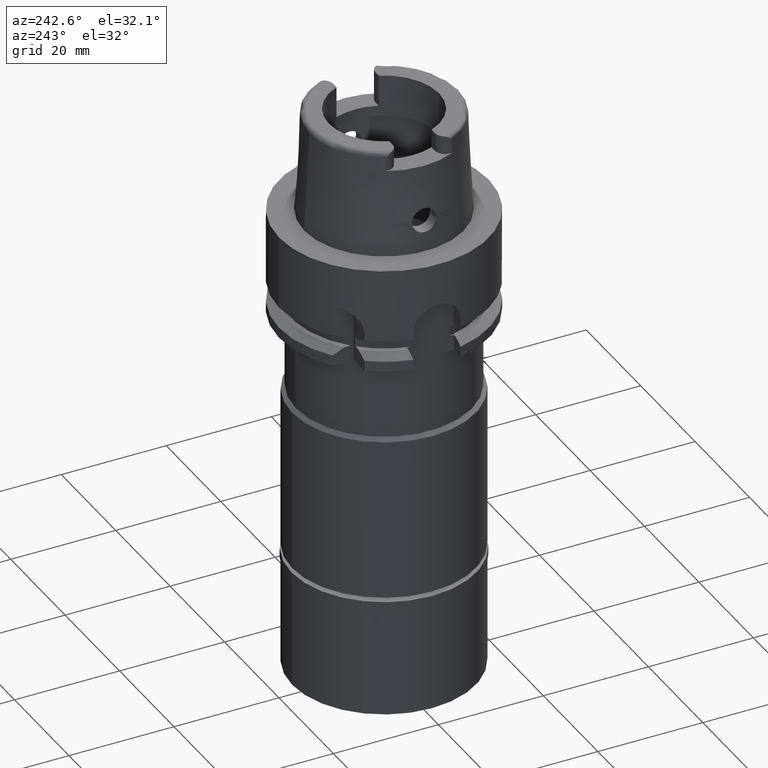
[diagram: clean part render]
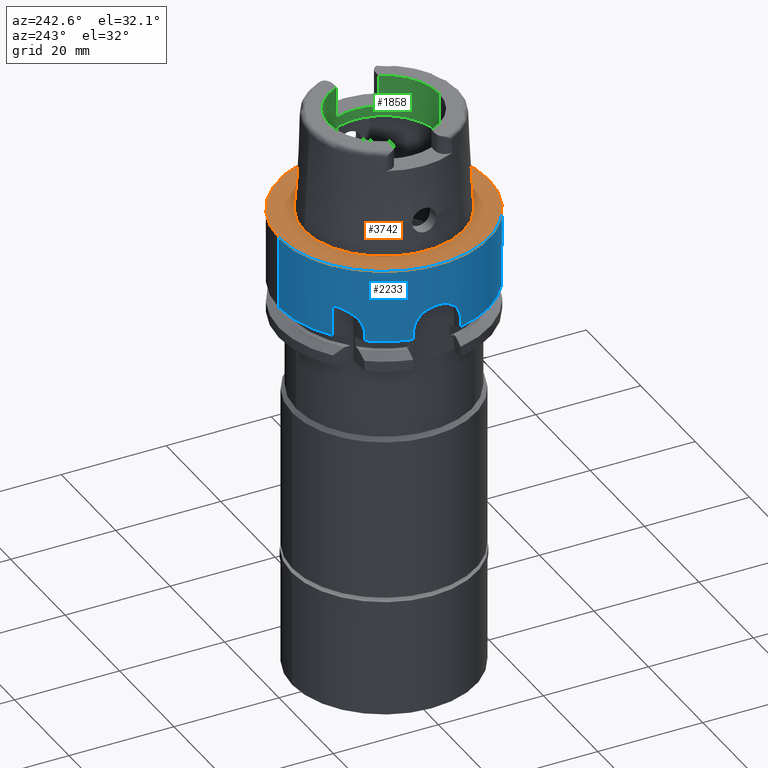
[diagram: same view with three faces highlighted in distinct colors, each labeled with its STEP entity id]
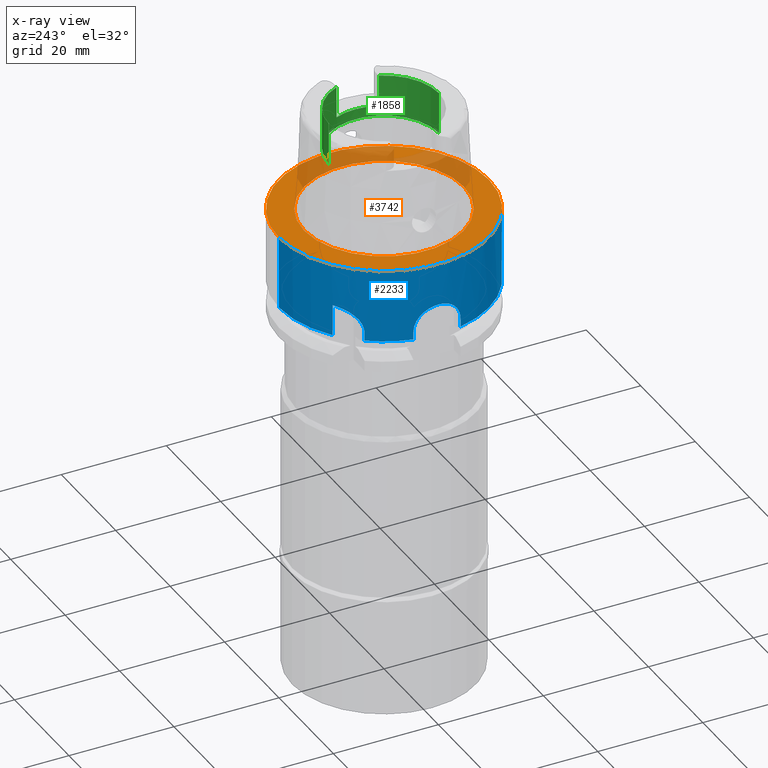
[diagram: x-ray of the same camera — body ghosted, the three highlighted faces saturated]
A machine part, auxiliary view with three faces highlighted in distinct colors.
The next image is the same camera in x-ray (body ghosted, the three faces saturated) — at least one of them is partly hidden behind the body in this view.
Their STEP definitions:

[orange] entity #3742 — the highlighted planar face has unit normal (0, 0, -1).
#4 = DIRECTION ( 'NONE',  ( 0.0000000000000000000, 0.0000000000000000000, 1.000000000000000000 ) ) ;
#108 = CARTESIAN_POINT ( 'NONE',  ( 0.0000000000000000000, 1.342457523729000028E-14, 0.0000000000000000000 ) ) ;
#170 = AXIS2_PLACEMENT_3D ( 'NONE', #108, #2147, #3004 ) ;
#224 = DIRECTION ( 'NONE',  ( 0.0000000000000000000, -1.000000000000000000, 0.0000000000000000000 ) ) ;
#363 = CARTESIAN_POINT ( 'NONE',  ( 0.0000000000000000000, 15.20000663301000010, 0.0000000000000000000 ) ) ;
#373 = EDGE_LOOP ( 'NONE', ( #3027, #1988 ) ) ;
#541 = VERTEX_POINT ( 'NONE', #644 ) ;
#644 = CARTESIAN_POINT ( 'NONE',  ( 0.0000000000000000000, -15.20000663301000010, 1.136868377215999875E-13 ) ) ;
#1156 = DIRECTION ( 'NONE',  ( 0.0000000000000000000, 0.0000000000000000000, -1.000000000000000000 ) ) ;
#1307 = AXIS2_PLACEMENT_3D ( 'NONE', #5102, #4, #1656 ) ;
#1482 = CIRCLE ( 'NONE', #1307, 15.20000663301000010 ) ;
#1615 = EDGE_CURVE ( 'NONE', #2781, #2472, #5119, .T. ) ;
#1656 = DIRECTION ( 'NONE',  ( 0.0000000000000000000, -1.000000000000000000, 0.0000000000000000000 ) ) ;
#1708 = CARTESIAN_POINT ( 'NONE',  ( 0.0000000000000000000, -20.00000000000000000, 3.197442310919999608E-14 ) ) ;
#1726 = CARTESIAN_POINT ( 'NONE',  ( 0.0000000000000000000, 20.00000000000000000, 2.131628207279999844E-14 ) ) ;
#1988 = ORIENTED_EDGE ( 'NONE', *, *, #2704, .F. ) ;
#2147 = DIRECTION ( 'NONE',  ( 0.0000000000000000000, 0.0000000000000000000, 1.000000000000000000 ) ) ;
#2191 = DIRECTION ( 'NONE',  ( 0.0000000000000000000, 1.000000000000000000, 0.0000000000000000000 ) ) ;
#2212 = FACE_OUTER_BOUND ( 'NONE', #2504, .T. ) ;
#2440 = AXIS2_PLACEMENT_3D ( 'NONE', #2638, #3885, #4274 ) ;
#2472 = VERTEX_POINT ( 'NONE', #1726 ) ;
#2504 = EDGE_LOOP ( 'NONE', ( #3549, #4907 ) ) ;
#2638 = CARTESIAN_POINT ( 'NONE',  ( 0.0000000000000000000, 1.224646799146999965E-14, 0.0000000000000000000 ) ) ;
#2704 = EDGE_CURVE ( 'NONE', #541, #2989, #1482, .T. ) ;
#2781 = VERTEX_POINT ( 'NONE', #1708 ) ;
#2985 = DIRECTION ( 'NONE',  ( 0.0000000000000000000, 0.0000000000000000000, -1.000000000000000000 ) ) ;
#2989 = VERTEX_POINT ( 'NONE', #363 ) ;
#3004 = DIRECTION ( 'NONE',  ( 0.0000000000000000000, 1.000000000000000000, 0.0000000000000000000 ) ) ;
#3018 = CARTESIAN_POINT ( 'NONE',  ( 0.0000000000000000000, 1.532829166152999980E-14, 3.197442310919999608E-14 ) ) ;
#3027 = ORIENTED_EDGE ( 'NONE', *, *, #4021, .F. ) ;
#3238 = EDGE_CURVE ( 'NONE', #2472, #2781, #4204, .T. ) ;
#3549 = ORIENTED_EDGE ( 'NONE', *, *, #3238, .F. ) ;
#3742 = ADVANCED_FACE ( 'NONE', ( #2212, #4748 ), #5158, .F. ) ;
#3885 = DIRECTION ( 'NONE',  ( 0.0000000000000000000, 0.0000000000000000000, -1.000000000000000000 ) ) ;
#3946 = CIRCLE ( 'NONE', #170, 15.20000663301000010 ) ;
#4021 = EDGE_CURVE ( 'NONE', #2989, #541, #3946, .T. ) ;
#4204 = CIRCLE ( 'NONE', #5186, 20.00000000000000000 ) ;
#4274 = DIRECTION ( 'NONE',  ( 0.0000000000000000000, -1.000000000000000000, 0.0000000000000000000 ) ) ;
#4469 = CARTESIAN_POINT ( 'NONE',  ( 0.0000000000000000000, 1.532829166152999980E-14, 3.197442310919999608E-14 ) ) ;
#4748 = FACE_BOUND ( 'NONE', #373, .T. ) ;
#4772 = AXIS2_PLACEMENT_3D ( 'NONE', #4469, #1156, #224 ) ;
#4907 = ORIENTED_EDGE ( 'NONE', *, *, #1615, .F. ) ;
#5102 = CARTESIAN_POINT ( 'NONE',  ( 0.0000000000000000000, 1.342457523729000028E-14, 0.0000000000000000000 ) ) ;
#5119 = CIRCLE ( 'NONE', #4772, 20.00000000000000000 ) ;
#5158 = PLANE ( 'NONE',  #2440 ) ;
#5186 = AXIS2_PLACEMENT_3D ( 'NONE', #3018, #2985, #2191 ) ;

[blue] entity #2233 — the highlighted cylindrical surface (partial cylindrical patch) has radius 20 mm, axis along (0, 0, -1).
#7 = VERTEX_POINT ( 'NONE', #3564 ) ;
#34 = CARTESIAN_POINT ( 'NONE',  ( -19.90101170705940348, 2.006481557453736908, -8.460996326225524555 ) ) ;
#53 = CIRCLE ( 'NONE', #2513, 20.00000000000000355 ) ;
#93 = CARTESIAN_POINT ( 'NONE',  ( -19.73202366874025060, -3.264763649351989372, -9.398687094199516423 ) ) ;
#118 = CARTESIAN_POINT ( 'NONE',  ( -19.87758030036442847, -2.223691308949410583, -8.577191542908050081 ) ) ;
#121 = CARTESIAN_POINT ( 'NONE',  ( -19.48717526991000071, -4.499999999998999911, -13.97927405783999966 ) ) ;
#142 = CARTESIAN_POINT ( 'NONE',  ( -19.51446967613451733, -4.386353221261614088, -11.33018856746538461 ) ) ;
#146 = LINE ( 'NONE', #121, #3962 ) ;
#198 = ORIENTED_EDGE ( 'NONE', *, *, #3244, .T. ) ;
#224 = DIRECTION ( 'NONE',  ( 0.0000000000000000000, -1.000000000000000000, 0.0000000000000000000 ) ) ;
#290 = CYLINDRICAL_SURFACE ( 'NONE', #634, 20.00000000000000000 ) ;
#365 = VECTOR ( 'NONE', #3818, 1000.000000000000000 ) ;
#479 = ORIENTED_EDGE ( 'NONE', *, *, #5190, .T. ) ;
#504 = CARTESIAN_POINT ( 'NONE',  ( -19.95105224385558884, -1.424502332197427279, -8.220975434818949878 ) ) ;
#532 = CARTESIAN_POINT ( 'NONE',  ( -19.58734834662835311, -4.043444086227347967, -10.50235415004552486 ) ) ;
#546 = VERTEX_POINT ( 'NONE', #2239 ) ;
#559 = CARTESIAN_POINT ( 'NONE',  ( -19.90503943809363108, -1.965476405207630783, -8.441329651984350591 ) ) ;
#634 = AXIS2_PLACEMENT_3D ( 'NONE', #5230, #3951, #2352 ) ;
#651 = EDGE_CURVE ( 'NONE', #546, #3570, #146, .T. ) ;
#850 = DIRECTION ( 'NONE',  ( 0.0000000000000000000, 0.0000000000000000000, 1.000000000000000000 ) ) ;
#879 = DIRECTION ( 'NONE',  ( 0.0000000000000000000, 1.000000000000000000, 0.0000000000000000000 ) ) ;
#946 = CARTESIAN_POINT ( 'NONE',  ( -19.67662592434447433, 3.585862665018688666, -9.765598252975316029 ) ) ;
#971 = CARTESIAN_POINT ( 'NONE',  ( -19.87283929436949137, 2.265734968552426398, -8.601136522433169063 ) ) ;
#1023 = ORIENTED_EDGE ( 'NONE', *, *, #2861, .T. ) ;
#1032 = AXIS2_PLACEMENT_3D ( 'NONE', #2966, #850, #879 ) ;
#1074 = DIRECTION ( 'NONE',  ( -0.9743587634952779464, -0.2249999999998949785, 0.0000000000000000000 ) ) ;
#1156 = DIRECTION ( 'NONE',  ( 0.0000000000000000000, 0.0000000000000000000, -1.000000000000000000 ) ) ;
#1227 = EDGE_CURVE ( 'NONE', #5248, #3624, #4478, .T. ) ;
#1285 = CARTESIAN_POINT ( 'NONE',  ( -15.87975912120936250, 12.15873529426161248, -11.28580827694025324 ) ) ;
#1300 = CARTESIAN_POINT ( 'NONE',  ( -19.48717526991000071, 4.499999999998999911, -13.97927405783999966 ) ) ;
#1311 = VECTOR ( 'NONE', #3622, 999.9999999999998863 ) ;
#1337 = CARTESIAN_POINT ( 'NONE',  ( -19.99992466048221473, 0.1575973122594574172, -8.000324464764840826 ) ) ;
#1365 = CARTESIAN_POINT ( 'NONE',  ( -19.65744153644776304, -3.686040093539598050, -9.918391056183477161 ) ) ;
#1390 = CARTESIAN_POINT ( 'NONE',  ( -19.75980399063744031, 3.092085134770911736, -9.226499188283552755 ) ) ;
#1434 = DIRECTION ( 'NONE',  ( -0.8000000000000000444, 0.5999999999999999778, 0.0000000000000000000 ) ) ;
#1441 = ORIENTED_EDGE ( 'NONE', *, *, #3148, .F. ) ;
#1449 = CARTESIAN_POINT ( 'NONE',  ( -15.35548807691591833, 12.81448988125879929, -9.889279500987324667 ) ) ;
#1615 = EDGE_CURVE ( 'NONE', #2781, #2472, #5119, .T. ) ;
#1623 = EDGE_CURVE ( 'NONE', #2185, #2732, #3633, .T. ) ;
#1683 = B_SPLINE_CURVE_WITH_KNOTS ( 'NONE', 3,
 ( #3865, #4754, #4281, #5111, #1834, #4699, #3812, #946, #2160, #1390, #3097, #3914, #2617, #971, #34, #3890, #1750, #3835, #2646, #4313, #1337, #2592, #2237, #5163, #504, #559, #118, #1808, #3043, #3072, #4671, #93, #5193, #1783, #3420, #3473, #1365, #3449, #532, #142, #3501, #2216 ),
 .UNSPECIFIED., .F., .F.,
 ( 4, 2, 2, 2, 2, 2, 2, 2, 2, 2, 2, 2, 2, 2, 2, 2, 2, 2, 2, 2, 4 ),
 ( 0.0000000000000000000, 0.1250000000000006661, 0.1562500000000008882, 0.1875000000000011102, 0.2500000000000011657, 0.2812500000000010547, 0.3125000000000009437, 0.3750000000000009437, 0.4375000000000009437, 0.4687500000000009437, 0.5000000000000008882, 0.5625000000000009992, 0.6250000000000009992, 0.6875000000000009992, 0.7187500000000008882, 0.7500000000000008882, 0.7812500000000007772, 0.7968750000000007772, 0.8125000000000007772, 0.8750000000000006661, 1.000000000000000000 ),
 .UNSPECIFIED. ) ;
#1704 = CARTESIAN_POINT ( 'NONE',  ( -15.93587153131166190, 12.08516732483822231, -11.59169712686757236 ) ) ;
#1708 = CARTESIAN_POINT ( 'NONE',  ( 0.0000000000000000000, -20.00000000000000000, 3.197442310919999608E-14 ) ) ;
#1726 = CARTESIAN_POINT ( 'NONE',  ( 0.0000000000000000000, 20.00000000000000000, 2.131628207279999844E-14 ) ) ;
#1750 = CARTESIAN_POINT ( 'NONE',  ( -19.96750944478268153, 1.175201821425688520, -8.145217317607723828 ) ) ;
#1783 = CARTESIAN_POINT ( 'NONE',  ( -19.69010392573250456, -3.507439291643289714, -9.679810457699437265 ) ) ;
#1808 = CARTESIAN_POINT ( 'NONE',  ( -19.83103023214412275, -2.597304437396405152, -8.822664513093801730 ) ) ;
#1823 = ORIENTED_EDGE ( 'NONE', *, *, #1227, .F. ) ;
#1834 = CARTESIAN_POINT ( 'NONE',  ( -19.58617220355612076, 4.048068586273356750, -10.52901075052020197 ) ) ;
#1872 = CARTESIAN_POINT ( 'NONE',  ( -15.30881953616778546, 12.87028504820504970, -9.810870403296542364 ) ) ;
#1896 = CARTESIAN_POINT ( 'NONE',  ( -15.22212148334495652, 12.97255504259958592, -9.677931765514935947 ) ) ;
#2028 = CARTESIAN_POINT ( 'NONE',  ( -19.48717526991000071, 4.500000000000000000, -12.50000000000000000 ) ) ;
#2067 = CARTESIAN_POINT ( 'NONE',  ( -11.99999819275999968, 16.00000135543000113, -13.97928091979999898 ) ) ;
#2077 = CARTESIAN_POINT ( 'NONE',  ( -12.00000000000000000, 16.00000000000000000, -8.000000000000000000 ) ) ;
#2142 = CARTESIAN_POINT ( 'NONE',  ( 0.0000000000000000000, -20.00000000000000000, 2.131628207279999844E-14 ) ) ;
#2143 = CARTESIAN_POINT ( 'NONE',  ( -15.81605617449167944, 12.24143583964162474, -11.01758462800298943 ) ) ;
#2160 = CARTESIAN_POINT ( 'NONE',  ( -19.70989881054540405, 3.400480229966022172, -9.537327030344847856 ) ) ;
#2182 = CARTESIAN_POINT ( 'NONE',  ( 0.0000000000000000000, 20.00000000000000000, 2.131628207279999844E-14 ) ) ;
#2185 = VERTEX_POINT ( 'NONE', #2272 ) ;
#2216 = CARTESIAN_POINT ( 'NONE',  ( -19.48717526991000071, -4.500000000000000000, -12.50000000000000000 ) ) ;
#2233 = ADVANCED_FACE ( 'NONE', ( #4456 ), #290, .T. ) ;
#2237 = CARTESIAN_POINT ( 'NONE',  ( -19.99374080870738979, -0.5755508445235684167, -8.026665046195276432 ) ) ;
#2239 = CARTESIAN_POINT ( 'NONE',  ( -19.48717526991000071, -4.499999999998999911, -13.97927405783999966 ) ) ;
#2241 = CARTESIAN_POINT ( 'NONE',  ( -15.20084630090073752, 12.99747171227371645, -9.646829051107950193 ) ) ;
#2246 = CARTESIAN_POINT ( 'NONE',  ( -12.00000000000000000, 16.00000000000000000, -8.000000000000000000 ) ) ;
#2268 = CARTESIAN_POINT ( 'NONE',  ( -14.86191345708037304, 13.39340721123660849, -9.159495473657289111 ) ) ;
#2272 = CARTESIAN_POINT ( 'NONE',  ( -15.99999372091000183, 12.00000837210000171, -13.97924226533999992 ) ) ;
#2352 = DIRECTION ( 'NONE',  ( 0.0000000000000000000, -1.000000000000000000, 0.0000000000000000000 ) ) ;
#2414 = CARTESIAN_POINT ( 'NONE',  ( -15.99999372091000183, 12.00000837210000171, -13.97924226533999992 ) ) ;
#2470 = EDGE_CURVE ( 'NONE', #2781, #3114, #3076, .T. ) ;
#2472 = VERTEX_POINT ( 'NONE', #1726 ) ;
#2513 = AXIS2_PLACEMENT_3D ( 'NONE', #4414, #5240, #1074 ) ;
#2515 = CARTESIAN_POINT ( 'NONE',  ( -16.00000000000000000, 12.00000000000000000, -12.47213595500000061 ) ) ;
#2531 = LINE ( 'NONE', #2182, #4842 ) ;
#2592 = CARTESIAN_POINT ( 'NONE',  ( -20.00014337263580444, -0.2855843574083795633, -7.999383543394314344 ) ) ;
#2601 = ORIENTED_EDGE ( 'NONE', *, *, #651, .F. ) ;
#2617 = CARTESIAN_POINT ( 'NONE',  ( -19.82537735021692882, 2.640120653188947397, -8.853291066935211617 ) ) ;
#2623 = CARTESIAN_POINT ( 'NONE',  ( -15.25149970157291079, 12.93803355882246287, -9.721830750468649640 ) ) ;
#2646 = CARTESIAN_POINT ( 'NONE',  ( -19.99154229947881234, 0.5997335204236925454, -8.036946116019416664 ) ) ;
#2679 = CARTESIAN_POINT ( 'NONE',  ( -15.20937689676215854, 12.98748690318885579, -9.659252158567413815 ) ) ;
#2713 = CARTESIAN_POINT ( 'NONE',  ( -15.44554149701556334, 12.70607916013753425, -10.04877179533017006 ) ) ;
#2732 = VERTEX_POINT ( 'NONE', #4710 ) ;
#2781 = VERTEX_POINT ( 'NONE', #1708 ) ;
#2808 = CARTESIAN_POINT ( 'NONE',  ( -19.48717526991000071, -4.500000000000000000, -12.50000000000000000 ) ) ;
#2861 = EDGE_CURVE ( 'NONE', #7, #5242, #3412, .T. ) ;
#2960 = CARTESIAN_POINT ( 'NONE',  ( -15.86021997840589215, 12.18421434374775636, -11.19507413641573379 ) ) ;
#2966 = CARTESIAN_POINT ( 'NONE',  ( 0.0000000000000000000, 1.047199923064999921E-14, -13.97927405783999966 ) ) ;
#3043 = CARTESIAN_POINT ( 'NONE',  ( -19.81495811395441109, -2.716760524417388023, -8.909724100227593979 ) ) ;
#3072 = CARTESIAN_POINT ( 'NONE',  ( -19.78224293359433617, -2.945541940128718839, -9.094313801972255362 ) ) ;
#3075 = DIRECTION ( 'NONE',  ( -1.515447607185000053E-12, -1.513045946952000077E-13, 1.000000000000000000 ) ) ;
#3076 = LINE ( 'NONE', #2142, #365 ) ;
#3084 = DIRECTION ( 'NONE',  ( 0.0000000000000000000, 0.0000000000000000000, 1.000000000000000000 ) ) ;
#3097 = CARTESIAN_POINT ( 'NONE',  ( -19.77646107365551487, 2.984071610970590260, -9.127955471534214382 ) ) ;
#3114 = VERTEX_POINT ( 'NONE', #5437 ) ;
#3142 = ORIENTED_EDGE ( 'NONE', *, *, #1615, .T. ) ;
#3148 = EDGE_CURVE ( 'NONE', #4308, #5242, #4876, .T. ) ;
#3244 = EDGE_CURVE ( 'NONE', #5248, #3570, #1683, .T. ) ;
#3339 = VECTOR ( 'NONE', #5332, 1000.000000000000000 ) ;
#3412 = CIRCLE ( 'NONE', #1032, 20.00000000000000000 ) ;
#3420 = CARTESIAN_POINT ( 'NONE',  ( -19.68182278509608452, -3.553579503807748008, -9.738389627749326038 ) ) ;
#3449 = CARTESIAN_POINT ( 'NONE',  ( -19.61681442143102316, -3.900125797436810426, -10.23574920792535359 ) ) ;
#3455 = CARTESIAN_POINT ( 'NONE',  ( -15.74008194948154227, 12.33945857570075155, -10.73733210868849675 ) ) ;
#3473 = CARTESIAN_POINT ( 'NONE',  ( -19.66542961151924729, -3.643206503643707350, -9.858164076015670574 ) ) ;
#3501 = CARTESIAN_POINT ( 'NONE',  ( -19.48717526990531823, -4.499999999998946620, -11.90408891551467185 ) ) ;
#3564 = CARTESIAN_POINT ( 'NONE',  ( 0.0000000000000000000, 20.00000000000000000, -13.97927405783999966 ) ) ;
#3570 = VERTEX_POINT ( 'NONE', #2808 ) ;
#3572 = AXIS2_PLACEMENT_3D ( 'NONE', #4798, #3084, #1434 ) ;
#3622 = DIRECTION ( 'NONE',  ( 3.022506647591088857E-07, 2.266877838509064339E-07, -0.9999999999999287237 ) ) ;
#3624 = VERTEX_POINT ( 'NONE', #1300 ) ;
#3633 = LINE ( 'NONE', #2414, #4331 ) ;
#3639 = EDGE_CURVE ( 'NONE', #2472, #7, #2531, .T. ) ;
#3789 = CARTESIAN_POINT ( 'NONE',  ( -15.98396788282792080, 12.02157037895322667, -11.96484072698378931 ) ) ;
#3812 = CARTESIAN_POINT ( 'NONE',  ( -19.62954444806866405, 3.832491287144320413, -10.13810527569706821 ) ) ;
#3818 = DIRECTION ( 'NONE',  ( 0.0000000000000000000, 4.549132851063000272E-14, -1.000000000000000000 ) ) ;
#3835 = CARTESIAN_POINT ( 'NONE',  ( -19.98664694672876152, 0.7446992775340903759, -8.058663723175726545 ) ) ;
#3865 = CARTESIAN_POINT ( 'NONE',  ( -19.48717526991000071, 4.500000000000000000, -12.50000000000000000 ) ) ;
#3874 = EDGE_LOOP ( 'NONE', ( #3966, #4079, #5418, #1823, #198, #2601, #479, #4689, #3142, #4873, #1023, #1441 ) ) ;
#3890 = CARTESIAN_POINT ( 'NONE',  ( -19.94881721475592329, 1.456340254602354500, -8.231454077846487749 ) ) ;
#3894 = CARTESIAN_POINT ( 'NONE',  ( -12.00000000000000000, 16.00000000000000000, -8.000000000000000000 ) ) ;
#3914 = CARTESIAN_POINT ( 'NONE',  ( -19.80931405381487309, 2.757566444266560168, -8.940999165911060587 ) ) ;
#3918 = CARTESIAN_POINT ( 'NONE',  ( -12.73373719186037611, 15.44969710609009006, -8.061525733950290373 ) ) ;
#3951 = DIRECTION ( 'NONE',  ( 0.0000000000000000000, 0.0000000000000000000, -1.000000000000000000 ) ) ;
#3962 = VECTOR ( 'NONE', #3075, 1000.000000000000000 ) ;
#3966 = ORIENTED_EDGE ( 'NONE', *, *, #4728, .F. ) ;
#3970 = B_SPLINE_CURVE_WITH_KNOTS ( 'NONE', 3,
 ( #2515, #4199, #3789, #1704, #5062, #1285, #2960, #4650, #4235, #2143, #3455, #5252, #4347, #2713, #1449, #1872, #2623, #1896, #2679, #2241, #3978, #2268, #4374, #5147, #3918, #3894 ),
 .UNSPECIFIED., .F., .F.,
 ( 4, 2, 2, 1, 2, 2, 2, 2, 1, 1, 1, 2, 2, 2, 4 ),
 ( 0.0000000000000000000, 0.1250000000000058842, 0.1875000000000083267, 0.2187500000000092981, 0.2343750000000094647, 0.2500000000000096589, 0.3750000000000157652, 0.4375000000000187073, 0.4687500000000199840, 0.4843750000000206501, 0.4921875000000204836, 0.4960937500000204281, 0.5000000000000203171, 0.7500000000000102141, 1.000000000000000000 ),
 .UNSPECIFIED. ) ;
#3978 = CARTESIAN_POINT ( 'NONE',  ( -15.19742613127920983, 13.00147200410967052, -9.641872134429441132 ) ) ;
#4079 = ORIENTED_EDGE ( 'NONE', *, *, #1623, .F. ) ;
#4199 = CARTESIAN_POINT ( 'NONE',  ( -16.00000000000000711, 12.00000000000000355, -12.21804513612054777 ) ) ;
#4235 = CARTESIAN_POINT ( 'NONE',  ( -15.82339620927626278, 12.23194673464305815, -11.04570532206412459 ) ) ;
#4281 = CARTESIAN_POINT ( 'NONE',  ( -19.51384883821538452, 4.388793420091876563, -11.34323801397313147 ) ) ;
#4308 = VERTEX_POINT ( 'NONE', #2246 ) ;
#4313 = CARTESIAN_POINT ( 'NONE',  ( -19.99818078997454407, 0.3069346817542877304, -8.007778083682170589 ) ) ;
#4331 = VECTOR ( 'NONE', #4864, 1000.000000000000000 ) ;
#4347 = CARTESIAN_POINT ( 'NONE',  ( -15.50119889521982053, 12.63804615381663687, -10.15866810203913317 ) ) ;
#4374 = CARTESIAN_POINT ( 'NONE',  ( -14.43071595355305448, 13.86717054024800611, -8.776473179812999348 ) ) ;
#4414 = CARTESIAN_POINT ( 'NONE',  ( 0.0000000000000000000, 1.047199923064999921E-14, -13.97927405783999966 ) ) ;
#4456 = FACE_OUTER_BOUND ( 'NONE', #3874, .T. ) ;
#4469 = CARTESIAN_POINT ( 'NONE',  ( 0.0000000000000000000, 1.532829166152999980E-14, 3.197442310919999608E-14 ) ) ;
#4478 = LINE ( 'NONE', #2028, #3339 ) ;
#4650 = CARTESIAN_POINT ( 'NONE',  ( -15.83842631912509624, 12.21248506451029492, -11.10531529944397988 ) ) ;
#4671 = CARTESIAN_POINT ( 'NONE',  ( -19.76581291157882703, -3.053535605543079345, -9.190531495665574369 ) ) ;
#4689 = ORIENTED_EDGE ( 'NONE', *, *, #2470, .F. ) ;
#4699 = CARTESIAN_POINT ( 'NONE',  ( -19.61430876035932513, 3.909461947611101884, -10.26744619901289823 ) ) ;
#4710 = CARTESIAN_POINT ( 'NONE',  ( -16.00000000000000000, 12.00000000000000000, -12.47213595500000061 ) ) ;
#4728 = EDGE_CURVE ( 'NONE', #2732, #4308, #3970, .T. ) ;
#4754 = CARTESIAN_POINT ( 'NONE',  ( -19.48717526990531823, 4.499999999998910205, -11.91121864112773565 ) ) ;
#4772 = AXIS2_PLACEMENT_3D ( 'NONE', #4469, #1156, #224 ) ;
#4798 = CARTESIAN_POINT ( 'NONE',  ( 0.0000000000000000000, 1.047199923064999921E-14, -13.97927405783999966 ) ) ;
#4842 = VECTOR ( 'NONE', #5073, 1000.000000000000000 ) ;
#4864 = DIRECTION ( 'NONE',  ( -4.166318599811967107E-06, -5.555081679265952787E-06, 0.9999999999758915070 ) ) ;
#4873 = ORIENTED_EDGE ( 'NONE', *, *, #3639, .T. ) ;
#4876 = LINE ( 'NONE', #2077, #1311 ) ;
#4908 = CIRCLE ( 'NONE', #3572, 20.00000000000000000 ) ;
#4939 = CARTESIAN_POINT ( 'NONE',  ( -19.48717526991000071, 4.500000000000000000, -12.50000000000000000 ) ) ;
#5062 = CARTESIAN_POINT ( 'NONE',  ( -15.91583138484655890, 12.11156387398404100, -11.46842345235806171 ) ) ;
#5073 = DIRECTION ( 'NONE',  ( 0.0000000000000000000, -4.574547001069000145E-14, -1.000000000000000000 ) ) ;
#5111 = CARTESIAN_POINT ( 'NONE',  ( -19.57311414007133266, 4.110528022048987040, -10.66247789981303562 ) ) ;
#5119 = CIRCLE ( 'NONE', #4772, 20.00000000000000000 ) ;
#5147 = CARTESIAN_POINT ( 'NONE',  ( -13.36662782094305868, 14.89559561799340059, -8.227657083449473774 ) ) ;
#5163 = CARTESIAN_POINT ( 'NONE',  ( -19.96928184505521031, -1.143989900808433102, -8.137045619226494608 ) ) ;
#5190 = EDGE_CURVE ( 'NONE', #546, #3114, #53, .T. ) ;
#5193 = CARTESIAN_POINT ( 'NONE',  ( -19.71511815650771737, -3.365027197182742569, -9.507997109799610769 ) ) ;
#5230 = CARTESIAN_POINT ( 'NONE',  ( 0.0000000000000000000, 1.532829166152999980E-14, 25.16499999999999915 ) ) ;
#5240 = DIRECTION ( 'NONE',  ( 0.0000000000000000000, 0.0000000000000000000, 1.000000000000000000 ) ) ;
#5242 = VERTEX_POINT ( 'NONE', #2067 ) ;
#5248 = VERTEX_POINT ( 'NONE', #4939 ) ;
#5252 = CARTESIAN_POINT ( 'NONE',  ( -15.65503644424606122, 12.44779671412358901, -10.49807096192910372 ) ) ;
#5332 = DIRECTION ( 'NONE',  ( 1.515447607185000053E-12, -1.513045946952000077E-13, -1.000000000000000000 ) ) ;
#5418 = ORIENTED_EDGE ( 'NONE', *, *, #5423, .T. ) ;
#5423 = EDGE_CURVE ( 'NONE', #2185, #3624, #4908, .T. ) ;
#5437 = CARTESIAN_POINT ( 'NONE',  ( 0.0000000000000000000, -20.00000000000000000, -13.97927405783999966 ) ) ;

[green] entity #1858 — the highlighted cylindrical surface (partial cylindrical patch) has radius 10.5 mm, axis along (0, 0, -1).
#11 = EDGE_CURVE ( 'NONE', #4006, #393, #2243, .T. ) ;
#77 = EDGE_CURVE ( 'NONE', #4169, #637, #4760, .T. ) ;
#112 = CARTESIAN_POINT ( 'NONE',  ( 0.0000000000000000000, 1.532829166152999980E-14, 20.00000000000000000 ) ) ;
#210 = CARTESIAN_POINT ( 'NONE',  ( 9.697905701747998819, -4.025000000000000355, 14.00000000000000000 ) ) ;
#393 = VERTEX_POINT ( 'NONE', #3755 ) ;
#409 = ORIENTED_EDGE ( 'NONE', *, *, #2262, .F. ) ;
#432 = ORIENTED_EDGE ( 'NONE', *, *, #2873, .T. ) ;
#480 = EDGE_CURVE ( 'NONE', #4169, #3051, #4344, .T. ) ;
#523 = FACE_OUTER_BOUND ( 'NONE', #3213, .T. ) ;
#637 = VERTEX_POINT ( 'NONE', #2740 ) ;
#1033 = LINE ( 'NONE', #4740, #3233 ) ;
#1151 = DIRECTION ( 'NONE',  ( 0.0000000000000000000, 0.0000000000000000000, 1.000000000000000000 ) ) ;
#1393 = EDGE_CURVE ( 'NONE', #3465, #393, #2288, .T. ) ;
#1429 = CARTESIAN_POINT ( 'NONE',  ( 0.0000000000000000000, 1.363617650911000050E-14, 11.99735026918999914 ) ) ;
#1664 = CARTESIAN_POINT ( 'NONE',  ( 0.0000000000000000000, 10.50000000000000000, 20.00000000000000000 ) ) ;
#1688 = AXIS2_PLACEMENT_3D ( 'NONE', #112, #3439, #2637 ) ;
#1791 = EDGE_CURVE ( 'NONE', #3732, #3051, #2293, .T. ) ;
#1815 = CARTESIAN_POINT ( 'NONE',  ( 9.697905701747998819, 4.025000000000000355, 14.00000000000000000 ) ) ;
#1858 = ADVANCED_FACE ( 'NONE', ( #523 ), #2180, .F. ) ;
#1899 = CARTESIAN_POINT ( 'NONE',  ( 9.697905701747998819, 4.025000000000000355, 20.00000000000000000 ) ) ;
#1946 = VECTOR ( 'NONE', #3512, 1000.000000000000000 ) ;
#2068 = VERTEX_POINT ( 'NONE', #1815 ) ;
#2114 = AXIS2_PLACEMENT_3D ( 'NONE', #2410, #1151, #2830 ) ;
#2131 = CARTESIAN_POINT ( 'NONE',  ( 9.697905701747998819, 4.025000000000000355, 20.00000000000000000 ) ) ;
#2180 = CYLINDRICAL_SURFACE ( 'NONE', #2822, 10.50000000000000000 ) ;
#2243 = LINE ( 'NONE', #210, #1946 ) ;
#2245 = DIRECTION ( 'NONE',  ( 0.0000000000000000000, -4.506013014787999900E-14, 1.000000000000000000 ) ) ;
#2262 = EDGE_CURVE ( 'NONE', #3732, #2068, #3646, .T. ) ;
#2288 = CIRCLE ( 'NONE', #2640, 10.50000000000000000 ) ;
#2293 = CIRCLE ( 'NONE', #1688, 10.49999999999999822 ) ;
#2301 = DIRECTION ( 'NONE',  ( 0.0000000000000000000, 0.0000000000000000000, -1.000000000000000000 ) ) ;
#2318 = DIRECTION ( 'NONE',  ( 0.0000000000000000000, 4.506013014787999900E-14, 1.000000000000000000 ) ) ;
#2369 = AXIS2_PLACEMENT_3D ( 'NONE', #1429, #3188, #3591 ) ;
#2410 = CARTESIAN_POINT ( 'NONE',  ( 0.0000000000000000000, 1.532829166152999980E-14, 14.00000000000000000 ) ) ;
#2501 = CARTESIAN_POINT ( 'NONE',  ( 0.0000000000000000000, -10.50000000000000000, 20.00000000000000000 ) ) ;
#2563 = ORIENTED_EDGE ( 'NONE', *, *, #77, .T. ) ;
#2637 = DIRECTION ( 'NONE',  ( 0.9236100668331782559, 0.3833333333332911153, 0.0000000000000000000 ) ) ;
#2640 = AXIS2_PLACEMENT_3D ( 'NONE', #5054, #2926, #4610 ) ;
#2740 = CARTESIAN_POINT ( 'NONE',  ( 0.0000000000000000000, -10.50000000000000000, 11.99735026918999914 ) ) ;
#2822 = AXIS2_PLACEMENT_3D ( 'NONE', #3856, #4015, #4437 ) ;
#2828 = ORIENTED_EDGE ( 'NONE', *, *, #3980, .T. ) ;
#2830 = DIRECTION ( 'NONE',  ( 0.9236100668331782559, -0.3833333333332911153, 0.0000000000000000000 ) ) ;
#2873 = EDGE_CURVE ( 'NONE', #637, #3465, #1033, .T. ) ;
#2926 = DIRECTION ( 'NONE',  ( 0.0000000000000000000, 0.0000000000000000000, 1.000000000000000000 ) ) ;
#3051 = VERTEX_POINT ( 'NONE', #1664 ) ;
#3057 = ORIENTED_EDGE ( 'NONE', *, *, #1791, .T. ) ;
#3188 = DIRECTION ( 'NONE',  ( 0.0000000000000000000, 0.0000000000000000000, -1.000000000000000000 ) ) ;
#3213 = EDGE_LOOP ( 'NONE', ( #409, #3057, #3298, #2563, #432, #5032, #3241, #2828 ) ) ;
#3233 = VECTOR ( 'NONE', #2245, 1000.000000000000000 ) ;
#3241 = ORIENTED_EDGE ( 'NONE', *, *, #11, .F. ) ;
#3298 = ORIENTED_EDGE ( 'NONE', *, *, #480, .F. ) ;
#3376 = CARTESIAN_POINT ( 'NONE',  ( 0.0000000000000000000, 10.50000000000000000, 11.99735026918999914 ) ) ;
#3439 = DIRECTION ( 'NONE',  ( 0.0000000000000000000, 0.0000000000000000000, 1.000000000000000000 ) ) ;
#3465 = VERTEX_POINT ( 'NONE', #2501 ) ;
#3512 = DIRECTION ( 'NONE',  ( 0.0000000000000000000, 0.0000000000000000000, 1.000000000000000000 ) ) ;
#3591 = DIRECTION ( 'NONE',  ( 0.0000000000000000000, 1.000000000000000000, 0.0000000000000000000 ) ) ;
#3646 = LINE ( 'NONE', #1899, #4149 ) ;
#3732 = VERTEX_POINT ( 'NONE', #2131 ) ;
#3755 = CARTESIAN_POINT ( 'NONE',  ( 9.697905701747998819, -4.025000000000000355, 20.00000000000000000 ) ) ;
#3856 = CARTESIAN_POINT ( 'NONE',  ( 0.0000000000000000000, 1.532829166152999980E-14, 25.16499999999999915 ) ) ;
#3980 = EDGE_CURVE ( 'NONE', #4006, #2068, #4315, .T. ) ;
#4006 = VERTEX_POINT ( 'NONE', #4207 ) ;
#4015 = DIRECTION ( 'NONE',  ( 0.0000000000000000000, 0.0000000000000000000, -1.000000000000000000 ) ) ;
#4149 = VECTOR ( 'NONE', #2301, 1000.000000000000000 ) ;
#4169 = VERTEX_POINT ( 'NONE', #3376 ) ;
#4207 = CARTESIAN_POINT ( 'NONE',  ( 9.697905701747998819, -4.025000000000000355, 14.00000000000000000 ) ) ;
#4315 = CIRCLE ( 'NONE', #2114, 10.49999999999999822 ) ;
#4344 = LINE ( 'NONE', #4813, #5292 ) ;
#4437 = DIRECTION ( 'NONE',  ( 0.0000000000000000000, -1.000000000000000000, 0.0000000000000000000 ) ) ;
#4610 = DIRECTION ( 'NONE',  ( 0.0000000000000000000, -1.000000000000000000, 0.0000000000000000000 ) ) ;
#4740 = CARTESIAN_POINT ( 'NONE',  ( 0.0000000000000000000, -10.50000000000000000, 11.99735026918999914 ) ) ;
#4760 = CIRCLE ( 'NONE', #2369, 10.50000000000000000 ) ;
#4813 = CARTESIAN_POINT ( 'NONE',  ( 0.0000000000000000000, 10.50000000000000000, 11.99735026918999914 ) ) ;
#5032 = ORIENTED_EDGE ( 'NONE', *, *, #1393, .T. ) ;
#5054 = CARTESIAN_POINT ( 'NONE',  ( 0.0000000000000000000, 1.532829166152999980E-14, 20.00000000000000000 ) ) ;
#5292 = VECTOR ( 'NONE', #2318, 1000.000000000000000 ) ;